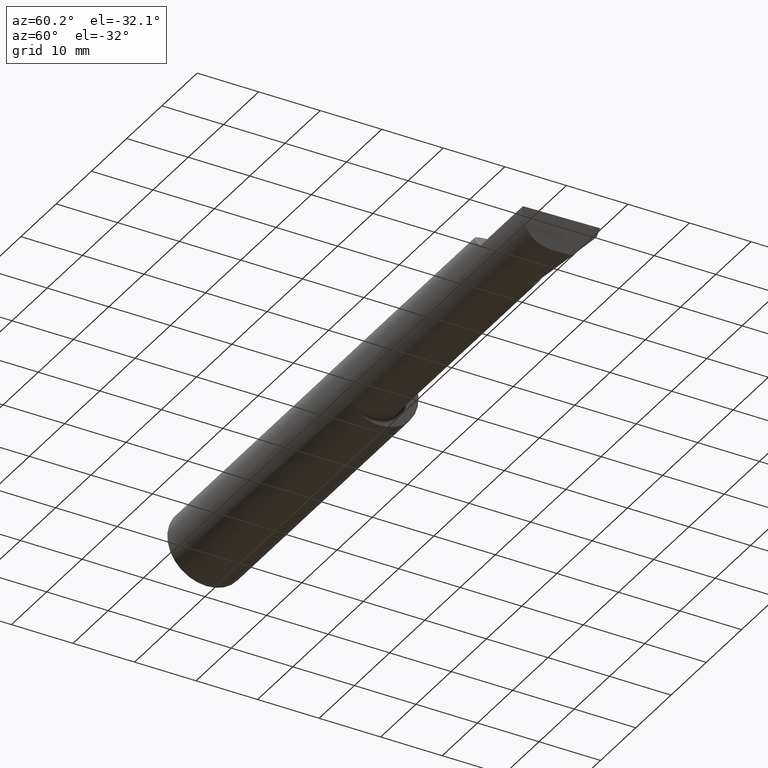
[diagram: clean part render]
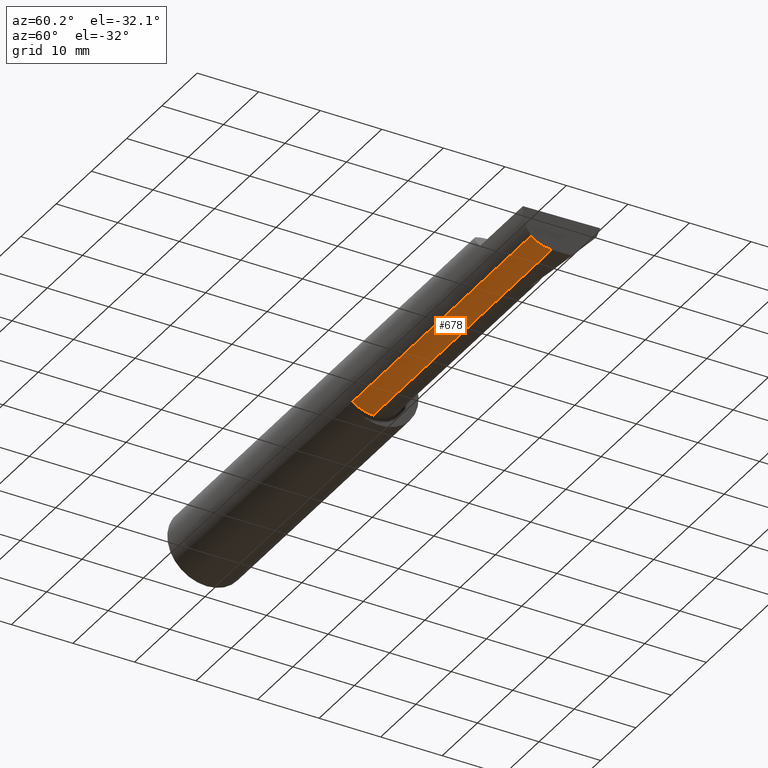
[diagram: same view with one face highlighted and labeled with its STEP entity id]
A machine part, auxiliary view. The second image highlights one B-rep face of the part: STEP entity #678.
In plain terms, the highlighted cylindrical surface (partial cylindrical patch) has radius 5.414 mm, axis along (-1, -0, -0).
Its self-contained STEP definition (entity closure, byte-faithful):
#33 = CARTESIAN_POINT ( 'NONE',  ( 1.975000000000000089, -0.1868028301886799081, -0.1659208399614080509 ) ) ;
#52 = VERTEX_POINT ( 'NONE', #688 ) ;
#55 = CARTESIAN_POINT ( 'NONE',  ( 4.000000000000000000, -0.05299999999999998462, -0.2131499999999999229 ) ) ;
#59 = EDGE_CURVE ( 'NONE', #526, #610, #269, .T. ) ;
#65 = AXIS2_PLACEMENT_3D ( 'NONE', #135, #396, #758 ) ;
#87 = EDGE_LOOP ( 'NONE', ( #521, #487, #702, #306, #517 ) ) ;
#90 = CARTESIAN_POINT ( 'NONE',  ( 0.000000000000000000, -0.05299999999999998462, 0.000000000000000000 ) ) ;
#114 = CARTESIAN_POINT ( 'NONE',  ( 3.966195468375008470, -0.05299999999999998462, -0.2131499999999999229 ) ) ;
#134 = VECTOR ( 'NONE', #304, 39.37007874015748143 ) ;
#135 = CARTESIAN_POINT ( 'NONE',  ( 1.975000000000000089, -0.05299999999999998462, 0.000000000000000000 ) ) ;
#143 = CARTESIAN_POINT ( 'NONE',  ( 1.975000000000000089, -0.05299999999999996381, -0.2131499999999997563 ) ) ;
#149 = VECTOR ( 'NONE', #430, 39.37007874015748143 ) ;
#182 = CARTESIAN_POINT ( 'NONE',  ( 0.000000000000000000, -0.05299999999999996381, -0.2131499999999999506 ) ) ;
#220 = VECTOR ( 'NONE', #762, 39.37007874015748143 ) ;
#269 = CIRCLE ( 'NONE', #65, 0.2131499999999997563 ) ;
#279 = DIRECTION ( 'NONE',  ( -1.000000000000000000, -0.000000000000000000, -0.000000000000000000 ) ) ;
#298 = CARTESIAN_POINT ( 'NONE',  ( 3.544999999999999929, -0.05299999999999998462, -0.2131499999999999229 ) ) ;
#304 = DIRECTION ( 'NONE',  ( -1.000000000000000000, 5.691349986800549142E-18, -0.000000000000000000 ) ) ;
#306 = ORIENTED_EDGE ( 'NONE', *, *, #569, .T. ) ;
#309 = EDGE_CURVE ( 'NONE', #734, #526, #426, .T. ) ;
#322 = AXIS2_PLACEMENT_3D ( 'NONE', #90, #279, #580 ) ;
#392 = VERTEX_POINT ( 'NONE', #114 ) ;
#395 = FACE_OUTER_BOUND ( 'NONE', #87, .T. ) ;
#396 = DIRECTION ( 'NONE',  ( -1.000000000000000000, -0.000000000000000000, -0.000000000000000000 ) ) ;
#426 = LINE ( 'NONE', #182, #149 ) ;
#430 = DIRECTION ( 'NONE',  ( -1.000000000000000000, -0.000000000000000000, -0.000000000000000000 ) ) ;
#444 = CARTESIAN_POINT ( 'NONE',  ( 3.964907988924523785, -0.1021668565906570653, -0.2131499999999999784 ) ) ;
#487 = ORIENTED_EDGE ( 'NONE', *, *, #759, .F. ) ;
#497 = EDGE_CURVE ( 'NONE', #52, #392, #583, .T. ) ;
#503 = CARTESIAN_POINT ( 'NONE',  ( 3.966195468375008470, -0.05299999999999998462, -0.2131499999999999229 ) ) ;
#517 = ORIENTED_EDGE ( 'NONE', *, *, #59, .F. ) ;
#521 = ORIENTED_EDGE ( 'NONE', *, *, #309, .F. ) ;
#526 = VERTEX_POINT ( 'NONE', #143 ) ;
#569 = EDGE_CURVE ( 'NONE', #52, #610, #628, .T. ) ;
#573 = CARTESIAN_POINT ( 'NONE',  ( 3.968492717492762445, -0.1868028301886794917, -0.1659208399614086338 ) ) ;
#580 = DIRECTION ( 'NONE',  ( 0.000000000000000000, 0.000000000000000000, 1.000000000000000000 ) ) ;
#583 =( BOUNDED_CURVE ( )  B_SPLINE_CURVE ( 3, ( #573, #699, #444, #503 ),
 .UNSPECIFIED., .F., .F. ) 
 B_SPLINE_CURVE_WITH_KNOTS ( ( 4, 4 ),
 ( 5.814587959757459679, 6.493234751459699083 ),
 .UNSPECIFIED. ) 
 CURVE ( )  GEOMETRIC_REPRESENTATION_ITEM ( )  RATIONAL_B_SPLINE_CURVE ( ( 1.000000000000000000, 0.9619867256453022986, 0.9619867256453022986, 1.000000000000000000 ) ) 
 REPRESENTATION_ITEM ( '' )  );
#610 = VERTEX_POINT ( 'NONE', #33 ) ;
#628 = LINE ( 'NONE', #704, #220 ) ;
#639 = CYLINDRICAL_SURFACE ( 'NONE', #322, 0.2131499999999999506 ) ;
#661 = LINE ( 'NONE', #55, #134 ) ;
#678 = ADVANCED_FACE ( 'NONE', ( #395 ), #639, .T. ) ;
#688 = CARTESIAN_POINT ( 'NONE',  ( 3.968492717492762445, -0.1868028301886794917, -0.1659208399614086338 ) ) ;
#699 = CARTESIAN_POINT ( 'NONE',  ( 3.965703997523711166, -0.1485302233682060380, -0.1967848538638756750 ) ) ;
#702 = ORIENTED_EDGE ( 'NONE', *, *, #497, .F. ) ;
#704 = CARTESIAN_POINT ( 'NONE',  ( 2.760000000000000231, -0.1868028301886794917, -0.1659208399614086338 ) ) ;
#734 = VERTEX_POINT ( 'NONE', #298 ) ;
#758 = DIRECTION ( 'NONE',  ( 0.000000000000000000, 0.000000000000000000, 1.000000000000000000 ) ) ;
#759 = EDGE_CURVE ( 'NONE', #392, #734, #661, .T. ) ;
#762 = DIRECTION ( 'NONE',  ( -1.000000000000000000, -0.000000000000000000, -0.000000000000000000 ) ) ;